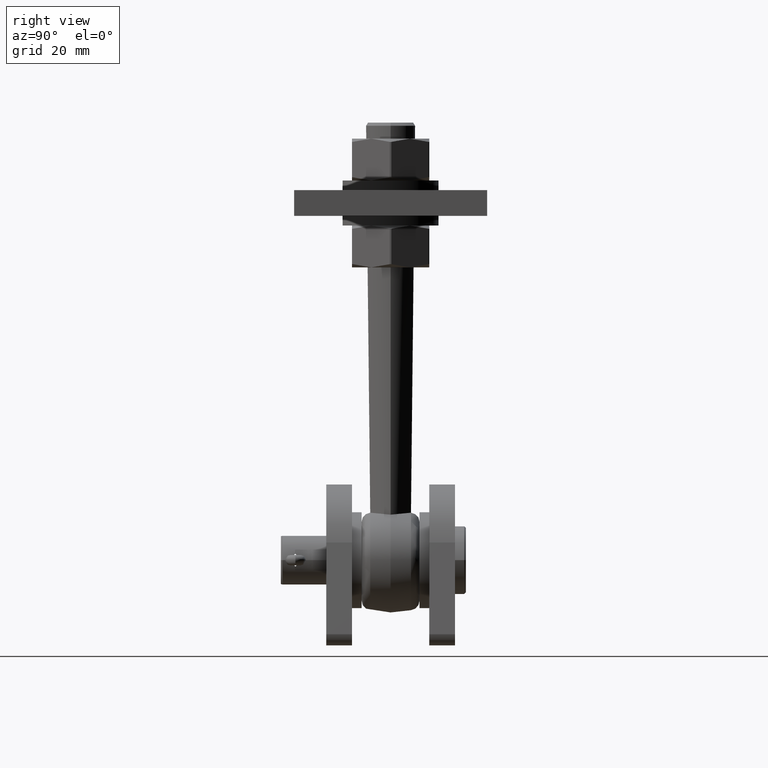
[diagram: clean part render]
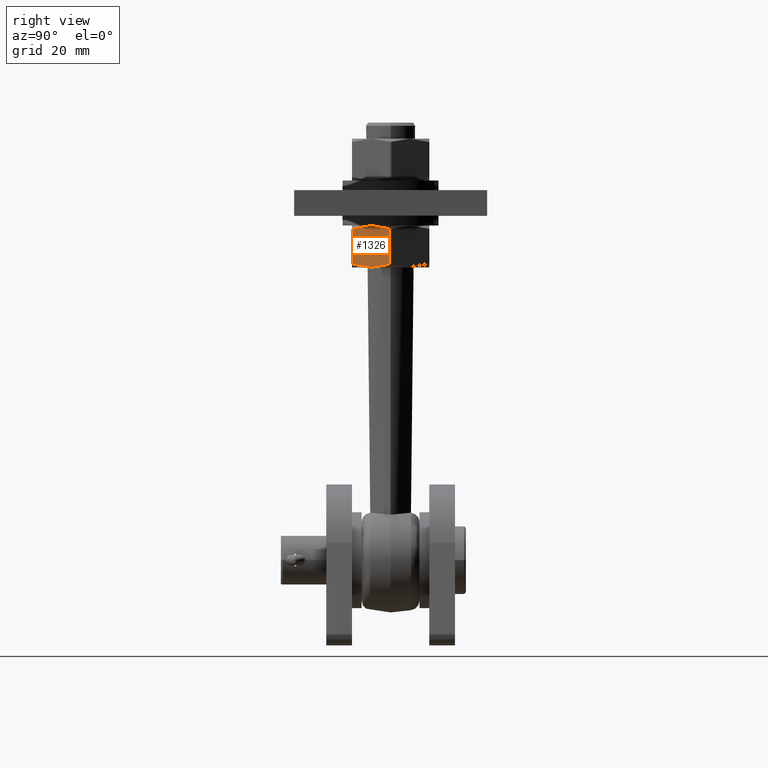
[diagram: same view with one face highlighted and labeled with its STEP entity id]
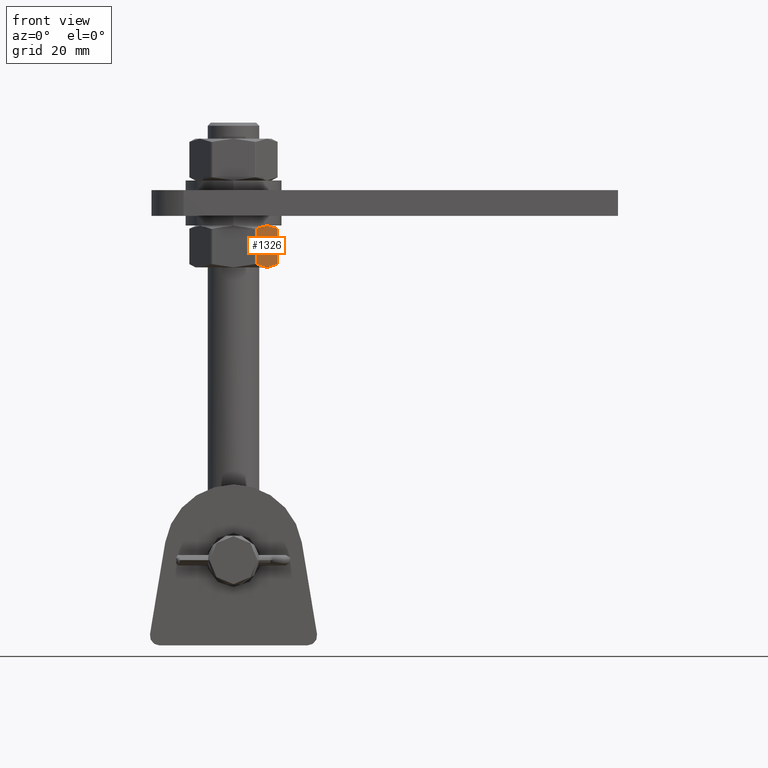
[diagram: same view with one face highlighted and labeled with its STEP entity id]
A machine part, right view. The second image highlights one B-rep face of the part: STEP entity #1326.
A second angle (front view) of the same face is appended — the face is thin or edge-on in the first view.
In plain terms, the highlighted planar face has unit normal (-0.866, 0.5, 0).
Its self-contained STEP definition (entity closure, byte-faithful):
#99 = CARTESIAN_POINT ( 'NONE',  ( 10.39230484541326405, -6.500000000000005329, -5.999999999999998224 ) ) ;
#276 = CARTESIAN_POINT ( 'NONE',  ( 11.51623569666507052, 6.386760395136428237, -4.053294661437719881 ) ) ;
#956 = ORIENTED_EDGE ( 'NONE', *, *, #9560, .T. ) ;
#1095 = LINE ( 'NONE', #12790, #14769 ) ;
#1324 = CARTESIAN_POINT ( 'NONE',  ( 10.39230484541326405, -6.500000000000005329, -5.999999999999998224 ) ) ;
#1326 = ADVANCED_FACE ( 'NONE', ( #13726 ), #14025, .F. ) ;
#1909 = B_SPLINE_CURVE_WITH_KNOTS ( 'NONE', 3,
 ( #9291, #17207, #11952, #13386, #14768, #99 ),
 .UNSPECIFIED., .F., .F.,
 ( 4, 2, 4 ),
 ( 0.0002976420579474609376, 0.003654043546377306294, 0.007010445034807149915 ),
 .UNSPECIFIED. ) ;
#2306 = CARTESIAN_POINT ( 'NONE',  ( 9.268740651451327750, 6.406434174578388152, -7.946070269507235828 ) ) ;
#2851 = CARTESIAN_POINT ( 'NONE',  ( 13.71206889325360656, 5.510220883462368491, -0.2499999999999974465 ) ) ;
#3036 = CARTESIAN_POINT ( 'NONE',  ( 10.67378928446765229, 6.500000000000018652, -5.512454650017770241 ) ) ;
#3264 = VERTEX_POINT ( 'NONE', #13700 ) ;
#3545 = DIRECTION ( 'NONE',  ( 0.000000000000000000, -1.000000000000000000, -1.372308401475337047E-42 ) ) ;
#3629 = EDGE_CURVE ( 'NONE', #3264, #4128, #11515, .T. ) ;
#3758 = CARTESIAN_POINT ( 'NONE',  ( 13.71206889325392986, -5.510220883462202401, -0.2499999999994518274 ) ) ;
#3807 = CARTESIAN_POINT ( 'NONE',  ( 10.11082040635887225, -6.500000000000015987, -6.487545349982226206 ) ) ;
#4128 = VERTEX_POINT ( 'NONE', #5356 ) ;
#4138 = CARTESIAN_POINT ( 'NONE',  ( 10.95658457648184125, 6.476788126677502255, -5.022638836107908844 ) ) ;
#5011 = CARTESIAN_POINT ( 'NONE',  ( 10.39230484541325694, 6.500000000000005329, -5.999999999999998224 ) ) ;
#5356 = CARTESIAN_POINT ( 'NONE',  ( 7.072540797572592020, 5.510220883462202401, -11.75000000000053113 ) ) ;
#5473 = VERTEX_POINT ( 'NONE', #16465 ) ;
#5512 = CARTESIAN_POINT ( 'NONE',  ( 11.79426250169668933, 6.320028020092786747, -3.571738109256910043 ) ) ;
#5684 = CARTESIAN_POINT ( 'NONE',  ( 12.62355850601879936, 6.062063013138935474, -2.135355295257159280 ) ) ;
#5705 = CARTESIAN_POINT ( 'NONE',  ( 7.072540797572905547, 6.500000000000005329, -11.74999999999998934 ) ) ;
#5975 = EDGE_CURVE ( 'NONE', #4128, #13376, #11914, .T. ) ;
#6132 = CARTESIAN_POINT ( 'NONE',  ( 13.85640646055101222, 6.500000000000005329, 2.748183035367769064E-17 ) ) ;
#6473 = CARTESIAN_POINT ( 'NONE',  ( 9.268373994161455798, -6.386760395136429125, -7.946705338562261467 ) ) ;
#6586 = CARTESIAN_POINT ( 'NONE',  ( 7.614553384551762782, -5.813219605597465645, -10.81120666101078065 ) ) ;
#7412 = DIRECTION ( 'NONE',  ( -0.8660254037844382635, 0.000000000000000000, 0.5000000000000008882 ) ) ;
#7464 = DIRECTION ( 'NONE',  ( 0.5000000000000007772, 0.000000000000000000, 0.8660254037844381525 ) ) ;
#7977 = CARTESIAN_POINT ( 'NONE',  ( 8.161051184807726955, -6.062063013138939027, -9.864644704742829617 ) ) ;
#8591 = VERTEX_POINT ( 'NONE', #3758 ) ;
#8611 = B_SPLINE_CURVE_WITH_KNOTS ( 'NONE', 3,
 ( #12124, #3036, #4138, #276, #5512, #5684, #9697, #2851 ),
 .UNSPECIFIED., .F., .F.,
 ( 4, 2, 2, 4 ),
 ( 0.007010445034807144711, 0.008682192066603519609, 0.01035393909839989537, 0.01369743316199264691 ),
 .UNSPECIFIED. ) ;
#8850 = CARTESIAN_POINT ( 'NONE',  ( 9.827162648512338450, 6.500000000000015987, -6.978854998533489784 ) ) ;
#8852 = EDGE_LOOP ( 'NONE', ( #13682, #12586, #11070, #956, #15877, #9929 ) ) ;
#9291 = CARTESIAN_POINT ( 'NONE',  ( 13.71206889325392986, -5.510220883462202401, -0.2499999999994518274 ) ) ;
#9295 = CARTESIAN_POINT ( 'NONE',  ( 9.828025114344683288, -6.476788126677502255, -6.977361163892073392 ) ) ;
#9560 = EDGE_CURVE ( 'NONE', #5473, #3264, #11503, .T. ) ;
#9697 = CARTESIAN_POINT ( 'NONE',  ( 13.17005630627476087, 5.813219605597462092, -1.188793338989203363 ) ) ;
#9929 = ORIENTED_EDGE ( 'NONE', *, *, #5975, .T. ) ;
#11070 = ORIENTED_EDGE ( 'NONE', *, *, #15823, .T. ) ;
#11503 = B_SPLINE_CURVE_WITH_KNOTS ( 'NONE', 3,
 ( #1324, #3807, #9295, #6473, #13265, #7977, #6586, #14602 ),
 .UNSPECIFIED., .F., .F.,
 ( 4, 2, 2, 4 ),
 ( 0.007010445034807149915, 0.008682192066603524813, 0.01035393909839990231, 0.01369743316199265905 ),
 .UNSPECIFIED. ) ;
#11515 = LINE ( 'NONE', #5705, #15829 ) ;
#11914 = B_SPLINE_CURVE_WITH_KNOTS ( 'NONE', 3,
 ( #12799, #16774, #16949, #2306, #8850, #5011 ),
 .UNSPECIFIED., .F., .F.,
 ( 4, 2, 4 ),
 ( 0.0002976420579474648408, 0.003654043546377304993, 0.007010445034807145578 ),
 .UNSPECIFIED. ) ;
#11952 = CARTESIAN_POINT ( 'NONE',  ( 12.62147978884749122, -6.062901251027059679, -2.138955739012435409 ) ) ;
#12124 = CARTESIAN_POINT ( 'NONE',  ( 10.39230484541325694, 6.500000000000005329, -5.999999999999998224 ) ) ;
#12297 = CARTESIAN_POINT ( 'NONE',  ( 10.39230484541325694, 6.500000000000005329, -5.999999999999998224 ) ) ;
#12471 = AXIS2_PLACEMENT_3D ( 'NONE', #6132, #7412, #7464 ) ;
#12586 = ORIENTED_EDGE ( 'NONE', *, *, #14058, .T. ) ;
#12790 = CARTESIAN_POINT ( 'NONE',  ( 13.71206889325360656, 6.500000000000005329, -0.2499999999999975020 ) ) ;
#12799 = CARTESIAN_POINT ( 'NONE',  ( 7.072540797572592020, 5.510220883462202401, -11.75000000000053113 ) ) ;
#13265 = CARTESIAN_POINT ( 'NONE',  ( 8.990347189129831662, -6.320028020092787635, -8.428261890743080187 ) ) ;
#13376 = VERTEX_POINT ( 'NONE', #12297 ) ;
#13386 = CARTESIAN_POINT ( 'NONE',  ( 11.51586903937519324, -6.406434174578387264, -4.053929730492755290 ) ) ;
#13682 = ORIENTED_EDGE ( 'NONE', *, *, #16847, .T. ) ;
#13700 = CARTESIAN_POINT ( 'NONE',  ( 7.072540797572903770, -5.510220883462424446, -11.74999999999998757 ) ) ;
#13726 = FACE_OUTER_BOUND ( 'NONE', #8852, .T. ) ;
#14025 = PLANE ( 'NONE',  #12471 ) ;
#14058 = EDGE_CURVE ( 'NONE', #16111, #8591, #1095, .T. ) ;
#14354 = CARTESIAN_POINT ( 'NONE',  ( 13.71206889325360656, 5.510220883462368491, -0.2499999999999974465 ) ) ;
#14602 = CARTESIAN_POINT ( 'NONE',  ( 7.072540797572903770, -5.510220883462424446, -11.74999999999998757 ) ) ;
#14768 = CARTESIAN_POINT ( 'NONE',  ( 10.95744704231418076, -6.500000000000015099, -5.021145001466503111 ) ) ;
#14769 = VECTOR ( 'NONE', #3545, 1000.000000000000000 ) ;
#15022 = DIRECTION ( 'NONE',  ( -0.000000000000000000, 1.000000000000000000, 1.372308401475337047E-42 ) ) ;
#15823 = EDGE_CURVE ( 'NONE', #8591, #5473, #1909, .T. ) ;
#15829 = VECTOR ( 'NONE', #15022, 1000.000000000000000 ) ;
#15877 = ORIENTED_EDGE ( 'NONE', *, *, #3629, .T. ) ;
#16111 = VERTEX_POINT ( 'NONE', #14354 ) ;
#16465 = CARTESIAN_POINT ( 'NONE',  ( 10.39230484541326405, -6.500000000000005329, -5.999999999999998224 ) ) ;
#16774 = CARTESIAN_POINT ( 'NONE',  ( 7.615867869546493196, 5.813954435900760664, -10.80892990621412153 ) ) ;
#16847 = EDGE_CURVE ( 'NONE', #13376, #16111, #8611, .T. ) ;
#16949 = CARTESIAN_POINT ( 'NONE',  ( 8.163129901979038650, 6.062901251027061456, -9.861044260987551269 ) ) ;
#17207 = CARTESIAN_POINT ( 'NONE',  ( 13.16874182128002957, -5.813954435900761553, -1.191070093785863149 ) ) ;